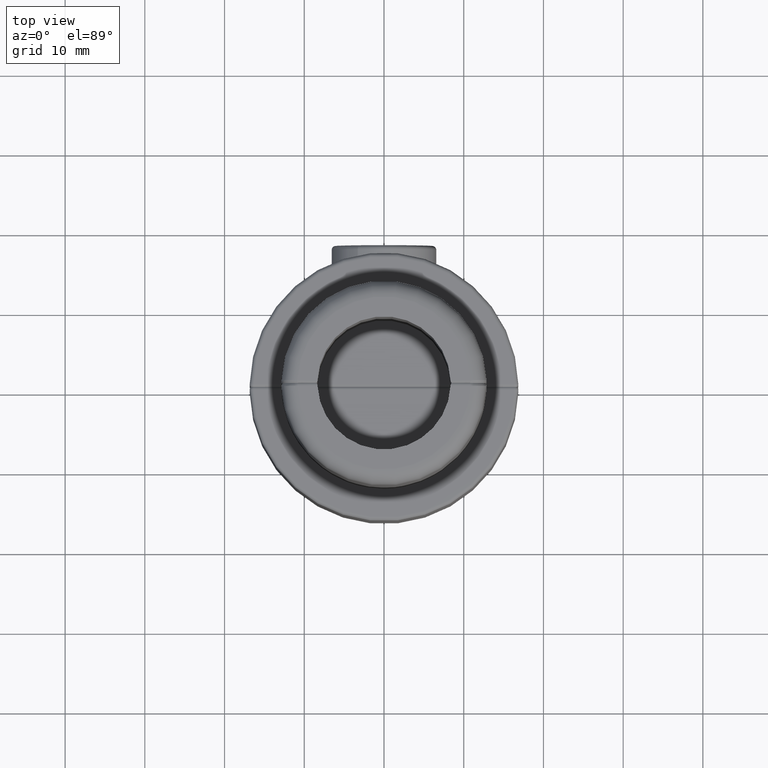
[diagram: clean part render]
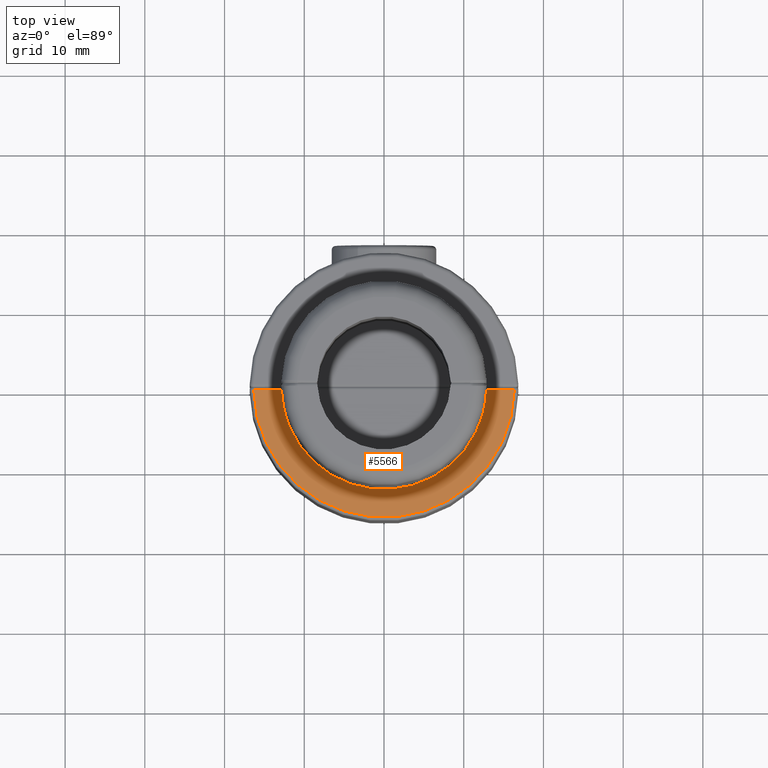
[diagram: same view with one face highlighted and labeled with its STEP entity id]
A machine part, top view. The second image highlights one B-rep face of the part: STEP entity #5566.
In plain terms, the highlighted planar face has unit normal (-0, 0, -1).
Its self-contained STEP definition (entity closure, byte-faithful):
#65 = VERTEX_POINT ( 'NONE', #5388 ) ;
#142 = VERTEX_POINT ( 'NONE', #7479 ) ;
#265 = ORIENTED_EDGE ( 'NONE', *, *, #8305, .T. ) ;
#317 = CARTESIAN_POINT ( 'NONE',  ( 0.5899885249844902813, 12.99229526936416157, -9.999999999999996447 ) ) ;
#359 = CARTESIAN_POINT ( 'NONE',  ( 12.82153006486169566, 0.5000000000000088818, -10.00000000000000000 ) ) ;
#393 = CARTESIAN_POINT ( 'NONE',  ( 12.69893808780084576, 2.064752077036063671, -9.999999999999998224 ) ) ;
#399 = CARTESIAN_POINT ( 'NONE',  ( -12.82751272112453833, 0.4999999999996940225, -9.999999999999998224 ) ) ;
#687 = CARTESIAN_POINT ( 'NONE',  ( -9.184850993605203904E-17, 0.5000000000000029976, -10.00000000000000000 ) ) ;
#979 = ORIENTED_EDGE ( 'NONE', *, *, #6552, .T. ) ;
#1015 = CARTESIAN_POINT ( 'NONE',  ( -2.155374411419233027, 12.84045191250307560, -10.00000000000000000 ) ) ;
#1087 = CARTESIAN_POINT ( 'NONE',  ( 12.64997796247689443, 2.453446996013626702, -9.999999999999996447 ) ) ;
#1095 = VERTEX_POINT ( 'NONE', #6801 ) ;
#1117 = EDGE_CURVE ( 'NONE', #1407, #65, #1588, .T. ) ;
#1121 = CARTESIAN_POINT ( 'NONE',  ( 12.15754006815094890, 4.359614413545127576, -10.00000000000000000 ) ) ;
#1153 = CARTESIAN_POINT ( 'NONE',  ( -12.14619066856003649, 4.367964359265685381, -10.00000000000000178 ) ) ;
#1183 = VECTOR ( 'NONE', #7573, 1000.000000000000000 ) ;
#1312 = ORIENTED_EDGE ( 'NONE', *, *, #8658, .T. ) ;
#1407 = VERTEX_POINT ( 'NONE', #4325 ) ;
#1588 = LINE ( 'NONE', #8318, #9383 ) ;
#1714 = B_SPLINE_CURVE_WITH_KNOTS ( 'NONE', 3,
 ( #359, #7150, #5522, #393, #1087, #8633, #2621, #1121, #7901, #4075, #3363, #6338, #6409, #8667, #3295, #7788, #5556, #9303, #4109, #2552, #9378, #7109, #9410, #1864, #4902, #317, #3396, #1903, #5592, #1015, #8707, #3263, #8566, #4009, #2661, #7179, #2520, #4758, #6372, #4146, #6305, #8597, #9442, #5668, #1797, #1153, #6452, #3331, #7076, #7829 ),
 .UNSPECIFIED., .F., .F.,
 ( 4, 2, 2, 2, 2, 2, 2, 2, 2, 2, 2, 2, 2, 2, 2, 2, 2, 2, 2, 2, 2, 2, 2, 2, 4 ),
 ( 0.0003852667224375621322, 0.001560506712463923928, 0.002735746702490285832, 0.003910986692516647302, 0.005086226682543010073, 0.007436706662595731279, 0.008611946652622088846, 0.009787186642648448148, 0.01213766662270117022, 0.01331290661272753126, 0.01448814660275389229, 0.01683862658280662478, 0.01918910656285935379, 0.02036434655288571829, 0.02153958654291208627, 0.02389006652296481181, 0.02506530651299117632, 0.02624054650301754429, 0.02859102648307027331, 0.02976626647309663434, 0.03094150646312299538, 0.03329198644317571398, 0.03564246642322843606, 0.03681770641325479709, 0.03799294640328115813 ),
 .UNSPECIFIED. ) ;
#1780 = LINE ( 'NONE', #687, #1183 ) ;
#1797 = CARTESIAN_POINT ( 'NONE',  ( -11.72378940010010062, 5.461083678313843670, -10.00000000000000000 ) ) ;
#1864 = CARTESIAN_POINT ( 'NONE',  ( 2.540889932220189440, 12.76943912359003441, -9.999999999999998224 ) ) ;
#1903 = CARTESIAN_POINT ( 'NONE',  ( -0.5962957080091007001, 12.99210965125185702, -9.999999999999996447 ) ) ;
#1919 = CARTESIAN_POINT ( 'NONE',  ( -9.184850993605203904E-17, 0.5000000000000029976, -10.00000000000000000 ) ) ;
#2233 = DIRECTION ( 'NONE',  ( -1.000000000000000000, -1.836970198721029688E-16, 0.000000000000000000 ) ) ;
#2335 = ORIENTED_EDGE ( 'NONE', *, *, #5894, .T. ) ;
#2520 = CARTESIAN_POINT ( 'NONE',  ( -7.217436428051469122, 10.80718120664685067, -10.00000000000000355 ) ) ;
#2538 = DIRECTION ( 'NONE',  ( 0.000000000000000000, 0.000000000000000000, 1.000000000000000000 ) ) ;
#2552 = CARTESIAN_POINT ( 'NONE',  ( 6.211034676922954745, 11.40426992575948439, -10.00000000000000355 ) ) ;
#2621 = CARTESIAN_POINT ( 'NONE',  ( 12.40250818504162389, 3.607879848576261317, -9.999999999999996447 ) ) ;
#2661 = CARTESIAN_POINT ( 'NONE',  ( -5.514577045615985718, 11.76227135942420432, -10.00000000000000000 ) ) ;
#2702 = CARTESIAN_POINT ( 'NONE',  ( -2.755455298081558953E-17, 0.1500000000000008271, -10.00000000000000000 ) ) ;
#2766 = DIRECTION ( 'NONE',  ( 1.000000000000000000, 0.000000000000000000, 0.000000000000000000 ) ) ;
#3043 = VERTEX_POINT ( 'NONE', #5399 ) ;
#3062 = CARTESIAN_POINT ( 'NONE',  ( 12.82351421340524311, 0.5000000000111796128, -9.999999999999998224 ) ) ;
#3263 = CARTESIAN_POINT ( 'NONE',  ( -4.052784374438095583, 12.35032550337444412, -10.00000000000000355 ) ) ;
#3284 = DIRECTION ( 'NONE',  ( 1.000000000000000000, 0.000000000000000000, -0.000000000000000000 ) ) ;
#3295 = CARTESIAN_POINT ( 'NONE',  ( 9.575708367409896837, 8.730475431841076883, -9.999999999999998224 ) ) ;
#3331 = CARTESIAN_POINT ( 'NONE',  ( -12.48482173186193478, 3.240396452909311442, -9.999999999999994671 ) ) ;
#3363 = CARTESIAN_POINT ( 'NONE',  ( 11.19048961918436724, 6.499862559670876117, -10.00000000000000000 ) ) ;
#3396 = CARTESIAN_POINT ( 'NONE',  ( 0.1940593142672596971, 13.00474264798010537, -9.999999999999996447 ) ) ;
#3465 = CARTESIAN_POINT ( 'NONE',  ( -12.79629379132307143, 1.156779027047803332, -10.00000000000000000 ) ) ;
#3859 = CIRCLE ( 'NONE', #4787, 16.34999999999999787 ) ;
#4009 = CARTESIAN_POINT ( 'NONE',  ( -5.158557652450795672, 11.92553488131416373, -9.999999999999998224 ) ) ;
#4075 = CARTESIAN_POINT ( 'NONE',  ( 11.54936257740238581, 5.804532102459067922, -9.999999999999998224 ) ) ;
#4109 = CARTESIAN_POINT ( 'NONE',  ( 6.885922595371503085, 11.00330917217953619, -9.999999999999998224 ) ) ;
#4146 = CARTESIAN_POINT ( 'NONE',  ( -9.034200613855164264, 9.296674729801349457, -9.999999999999996447 ) ) ;
#4189 = DIRECTION ( 'NONE',  ( -1.000000000000000000, -1.836970198721029688E-16, 0.000000000000000000 ) ) ;
#4325 = CARTESIAN_POINT ( 'NONE',  ( -12.82751272112453833, 0.4999999999996940225, -9.999999999999998224 ) ) ;
#4712 = EDGE_LOOP ( 'NONE', ( #265, #2335, #6341, #1312, #4970, #979 ) ) ;
#4758 = CARTESIAN_POINT ( 'NONE',  ( -8.156384286211739720, 10.08541849898284859, -10.00000000000000178 ) ) ;
#4777 = VERTEX_POINT ( 'NONE', #3062 ) ;
#4787 = AXIS2_PLACEMENT_3D ( 'NONE', #2702, #7980, #2766 ) ;
#4814 = VECTOR ( 'NONE', #4189, 1000.000000000000000 ) ;
#4874 = B_SPLINE_CURVE_WITH_KNOTS ( 'NONE', 3,
 ( #9539, #6544, #3465, #399 ),
 .UNSPECIFIED., .F., .F.,
 ( 4, 4 ),
 ( 0.000000000000000000, 0.001971191229886399589 ),
 .UNSPECIFIED. ) ;
#4902 = CARTESIAN_POINT ( 'NONE',  ( 1.766262779390091797, 12.90104233006922385, -9.999999999999996447 ) ) ;
#4970 = ORIENTED_EDGE ( 'NONE', *, *, #1117, .T. ) ;
#5385 = AXIS2_PLACEMENT_3D ( 'NONE', #6287, #2538, #3284 ) ;
#5388 = CARTESIAN_POINT ( 'NONE',  ( -16.34625339336203709, 0.5000000000000000000, -10.00000000000000000 ) ) ;
#5396 = FACE_OUTER_BOUND ( 'NONE', #4712, .T. ) ;
#5399 = CARTESIAN_POINT ( 'NONE',  ( 12.82153006486169566, 0.5000000000000088818, -10.00000000000000000 ) ) ;
#5520 = LINE ( 'NONE', #1919, #4814 ) ;
#5522 = CARTESIAN_POINT ( 'NONE',  ( 12.77299544813222276, 1.284113432135755017, -10.00000000000000000 ) ) ;
#5556 = CARTESIAN_POINT ( 'NONE',  ( 8.175854896867789989, 10.09085897558774292, -10.00000000000000355 ) ) ;
#5566 = ADVANCED_FACE ( 'NONE', ( #5396 ), #8551, .F. ) ;
#5592 = CARTESIAN_POINT ( 'NONE',  ( -0.9883135130988416339, 12.96733101688601586, -9.999999999999998224 ) ) ;
#5668 = CARTESIAN_POINT ( 'NONE',  ( -11.37933647129008463, 6.163983404538080357, -9.999999999999996447 ) ) ;
#5894 = EDGE_CURVE ( 'NONE', #4777, #3043, #1780, .T. ) ;
#6287 = CARTESIAN_POINT ( 'NONE',  ( -2.755455298081558953E-17, 0.1500000000000008271, -10.00000000000000000 ) ) ;
#6305 = CARTESIAN_POINT ( 'NONE',  ( -9.307995004279051798, 9.017888362376998757, -9.999999999999998224 ) ) ;
#6338 = CARTESIAN_POINT ( 'NONE',  ( 10.55269423426809183, 7.493594175210851027, -9.999999999999998224 ) ) ;
#6341 = ORIENTED_EDGE ( 'NONE', *, *, #7504, .T. ) ;
#6372 = CARTESIAN_POINT ( 'NONE',  ( -8.459068171705267147, 9.829853941715215981, -9.999999999999994671 ) ) ;
#6409 = CARTESIAN_POINT ( 'NONE',  ( 10.32146363587825633, 7.817627969406266253, -9.999999999999998224 ) ) ;
#6452 = CARTESIAN_POINT ( 'NONE',  ( -12.27115051386713063, 3.997077176504110874, -9.999999999999996447 ) ) ;
#6544 = CARTESIAN_POINT ( 'NONE',  ( -12.75110840443859495, 1.812371178582666609, -10.00000000000000000 ) ) ;
#6552 = EDGE_CURVE ( 'NONE', #65, #1095, #3859, .T. ) ;
#6801 = CARTESIAN_POINT ( 'NONE',  ( 16.34625339336203709, 0.5000000000000061062, -10.00000000000000000 ) ) ;
#7076 = CARTESIAN_POINT ( 'NONE',  ( -12.57370489842859307, 2.853247170106489428, -10.00000000000000000 ) ) ;
#7109 = CARTESIAN_POINT ( 'NONE',  ( 4.808276087203989135, 12.09245683358379786, -10.00000000000000178 ) ) ;
#7150 = CARTESIAN_POINT ( 'NONE',  ( 12.79858166434737221, 0.8922362784313493389, -10.00000000000000000 ) ) ;
#7179 = CARTESIAN_POINT ( 'NONE',  ( -6.556734108774274539, 11.22594433272890591, -10.00000000000000178 ) ) ;
#7479 = CARTESIAN_POINT ( 'NONE',  ( -12.64023065957762348, 2.462372996009464021, -10.00000000000000178 ) ) ;
#7504 = EDGE_CURVE ( 'NONE', #3043, #142, #1714, .T. ) ;
#7573 = DIRECTION ( 'NONE',  ( -1.000000000000000000, -1.836970198721029688E-16, 0.000000000000000000 ) ) ;
#7788 = CARTESIAN_POINT ( 'NONE',  ( 8.765295377583873560, 9.576975526033576713, -9.999999999999998224 ) ) ;
#7829 = CARTESIAN_POINT ( 'NONE',  ( -12.64023065957762348, 2.462372996009464021, -10.00000000000000178 ) ) ;
#7901 = CARTESIAN_POINT ( 'NONE',  ( 12.01434846033157733, 4.725227602940404559, -9.999999999999998224 ) ) ;
#7980 = DIRECTION ( 'NONE',  ( -0.000000000000000000, -0.000000000000000000, -1.000000000000000000 ) ) ;
#8305 = EDGE_CURVE ( 'NONE', #1095, #4777, #5520, .T. ) ;
#8318 = CARTESIAN_POINT ( 'NONE',  ( -9.184850993605205137E-17, 0.5000000000000029976, -10.00000000000000000 ) ) ;
#8551 = PLANE ( 'NONE',  #5385 ) ;
#8566 = CARTESIAN_POINT ( 'NONE',  ( -4.428368565206054264, 12.21945133178600074, -9.999999999999996447 ) ) ;
#8597 = CARTESIAN_POINT ( 'NONE',  ( -10.08867371042937577, 8.145480120064000573, -9.999999999999998224 ) ) ;
#8633 = CARTESIAN_POINT ( 'NONE',  ( 12.50190005467389120, 3.224008132887121292, -9.999999999999998224 ) ) ;
#8658 = EDGE_CURVE ( 'NONE', #142, #1407, #4874, .T. ) ;
#8667 = CARTESIAN_POINT ( 'NONE',  ( 9.833278393260249217, 8.435412676652338959, -10.00000000000000000 ) ) ;
#8707 = CARTESIAN_POINT ( 'NONE',  ( -2.921602751283940425, 12.68684691232774142, -10.00000000000000711 ) ) ;
#9303 = CARTESIAN_POINT ( 'NONE',  ( 7.217351695670795486, 10.78539893910140890, -10.00000000000000000 ) ) ;
#9378 = CARTESIAN_POINT ( 'NONE',  ( 5.866023763547560499, 11.58850681853377651, -10.00000000000000178 ) ) ;
#9383 = VECTOR ( 'NONE', #2233, 1000.000000000000000 ) ;
#9410 = CARTESIAN_POINT ( 'NONE',  ( 4.070866712892375006, 12.36346634215550822, -10.00000000000000000 ) ) ;
#9442 = CARTESIAN_POINT ( 'NONE',  ( -10.55673501290839056, 7.514803588798312894, -9.999999999999998224 ) ) ;
#9539 = CARTESIAN_POINT ( 'NONE',  ( -12.64023065957762348, 2.462372996009464021, -10.00000000000000178 ) ) ;